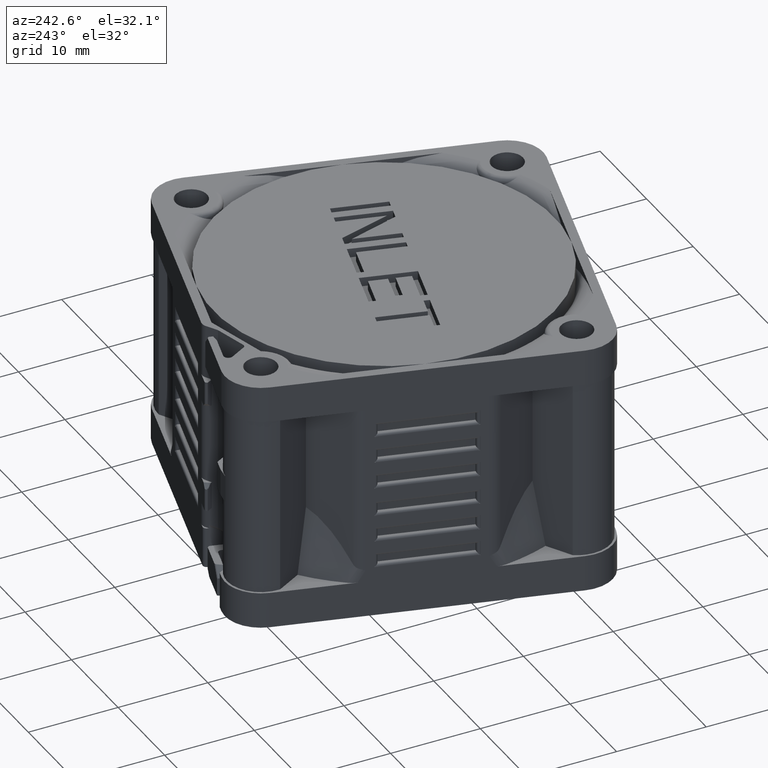
[diagram: clean part render]
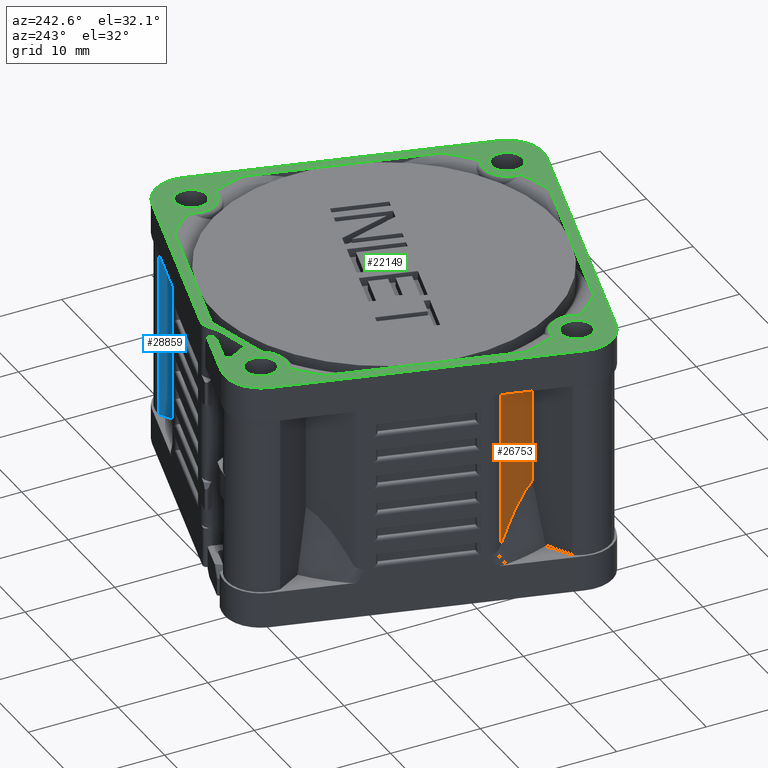
[diagram: same view with three faces highlighted in distinct colors, each labeled with its STEP entity id]
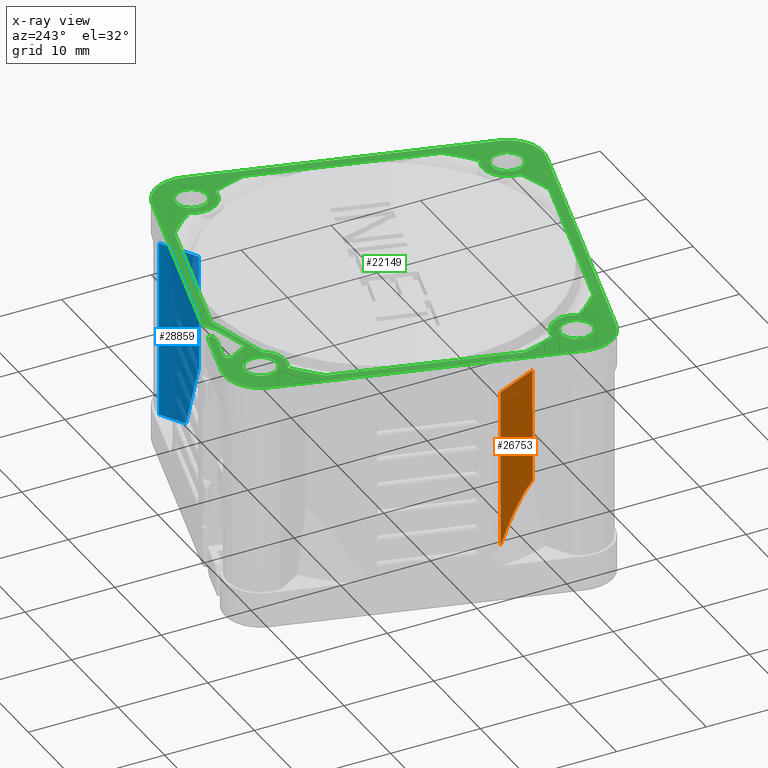
[diagram: x-ray of the same camera — body ghosted, the three highlighted faces saturated]
A machine part, auxiliary view with three faces highlighted in distinct colors.
The next image is the same camera in x-ray (body ghosted, the three faces saturated) — at least one of them is partly hidden behind the body in this view.
Their STEP definitions:

[orange] entity #26753 — the highlighted planar face has unit normal (0.9063, 0.4226, 0).
#146=DIRECTION('',(-4.226182617374E-1,9.063077870382E-1,0.E0));
#147=VECTOR('',#146,5.159290710028E0);
#148=CARTESIAN_POINT('',(-1.863398064401E1,-6.890090898729E0,2.4E1));
#149=LINE('',#148,#147);
#5679=DIRECTION('',(-7.307935993119E-7,-3.656734859091E-7,-9.999999999997E-1));
#5680=VECTOR('',#5679,1.789423994913E1);
#5681=CARTESIAN_POINT('',(-2.081439111568E1,-2.214185552638E0,2.4E1));
#5682=LINE('',#5681,#5680);
#5711=CARTESIAN_POINT('',(-1.863398064401E1,-6.890090898728E0,
1.111549243382E1));
#5712=CARTESIAN_POINT('',(-1.869593648646E1,-6.757226165834E0,
1.105888777689E1));
#5713=CARTESIAN_POINT('',(-1.882358867560E1,-6.483475164490E0,
1.092696558202E1));
#5714=CARTESIAN_POINT('',(-1.902354907844E1,-6.054658689103E0,
1.066923158123E1));
#5715=CARTESIAN_POINT('',(-1.923625593738E1,-5.598507386220E0,
1.033838555724E1));
#5716=CARTESIAN_POINT('',(-1.946256770216E1,-5.113180135533E0,
9.922620373976E0));
#5717=CARTESIAN_POINT('',(-1.970371719838E1,-4.596033763558E0,
9.408195123351E0));
#5718=CARTESIAN_POINT('',(-1.995939334928E1,-4.047733027265E0,
8.783510169619E0));
#5719=CARTESIAN_POINT('',(-2.022930818114E1,-3.468904255977E0,
8.037182415712E0));
#5720=CARTESIAN_POINT('',(-2.051327595190E1,-2.859913053331E0,
7.158252166514E0));
#5721=CARTESIAN_POINT('',(-2.071270042291E1,-2.432296534181E0,
6.473011944736E0));
#5722=CARTESIAN_POINT('',(-2.081440419267E1,-2.214192096087E0,
6.105760050872E0));
#5724=DIRECTION('',(0.E0,-7.210478337914E-14,1.E0));
#5725=VECTOR('',#5724,1.288450756618E1);
#5726=CARTESIAN_POINT('',(-1.863398064401E1,-6.890090898728E0,
1.111549243382E1));
#5727=LINE('',#5726,#5725);
#11691=CARTESIAN_POINT('',(-1.863398064401E1,-6.890090898729E0,2.4E1));
#11692=VERTEX_POINT('',#11691);
#11693=CARTESIAN_POINT('',(-2.081439111568E1,-2.214185552638E0,2.4E1));
#11694=VERTEX_POINT('',#11693);
#12612=CARTESIAN_POINT('',(-2.081440419267E1,-2.214192096087E0,
6.105760050872E0));
#12613=VERTEX_POINT('',#12612);
#12614=CARTESIAN_POINT('',(-1.863398064401E1,-6.890090898728E0,
1.111549243382E1));
#12615=VERTEX_POINT('',#12614);
#26740=CARTESIAN_POINT('',(-1.888385127123E1,-6.354241609414E0,2.4E1));
#26741=DIRECTION('',(9.063077870367E-1,4.226182617407E-1,0.E0));
#26742=DIRECTION('',(0.E0,0.E0,-1.E0));
#26743=AXIS2_PLACEMENT_3D('',#26740,#26741,#26742);
#26744=PLANE('',#26743);
#26745=ORIENTED_EDGE('',*,*,#26730,.F.);
#26746=ORIENTED_EDGE('',*,*,#14259,.F.);
#26748=ORIENTED_EDGE('',*,*,#26747,.F.);
#26750=ORIENTED_EDGE('',*,*,#26749,.T.);
#26751=EDGE_LOOP('',(#26745,#26746,#26748,#26750));
#26752=FACE_OUTER_BOUND('',#26751,.F.);
#26753=ADVANCED_FACE('',(#26752),#26744,.F.);
#5723=B_SPLINE_CURVE_WITH_KNOTS('',3,(#5711,#5712,#5713,#5714,#5715,#5716,#5717,
#5718,#5719,#5720,#5721,#5722),.UNSPECIFIED.,.F.,.F.,(4,1,1,1,1,1,1,1,1,4),
(0.E0,1.111111111111E-1,2.222222222222E-1,3.333333333333E-1,4.444444444444E-1,
5.555555555556E-1,6.666666666667E-1,7.777777777778E-1,8.888888888889E-1,1.E0),
.UNSPECIFIED.);
#14259=EDGE_CURVE('',#11692,#11694,#149,.T.);
#26730=EDGE_CURVE('',#11694,#12613,#5682,.T.);
#26747=EDGE_CURVE('',#12615,#11692,#5727,.T.);
#26749=EDGE_CURVE('',#12615,#12613,#5723,.T.);

[blue] entity #28859 — the highlighted planar face has unit normal (0.5, -0.866, 0).
#319=DIRECTION('',(8.660228321728E-1,5.000044541356E-1,0.E0));
#320=VECTOR('',#319,4.730358838087E0);
#321=CARTESIAN_POINT('',(1.528409417094E1,1.269229792821E1,2.4E1));
#322=LINE('',#321,#320);
#405=DIRECTION('',(-8.660204290515E-1,-5.000086163912E-1,1.999955604561E-13));
#406=VECTOR('',#405,3.197513288423E0);
#407=CARTESIAN_POINT('',(1.938069299405E1,1.505749845470E1,4.E0));
#408=LINE('',#407,#406);
#6907=DIRECTION('',(3.248003288547E-9,1.889466716420E-9,-1.E0));
#6908=VECTOR('',#6907,2.E1);
#6909=CARTESIAN_POINT('',(1.938069292909E1,1.505749841691E1,2.4E1));
#6910=LINE('',#6909,#6908);
#6915=DIRECTION('',(5.831835335231E-14,3.143400606224E-14,-1.E0));
#6916=VECTOR('',#6915,1.288443345660E1);
#6917=CARTESIAN_POINT('',(1.528409417094E1,1.269229792821E1,2.4E1));
#6918=LINE('',#6917,#6916);
#6965=CARTESIAN_POINT('',(1.661158116411E1,1.345871425946E1,4.000000000001E0));
#6966=CARTESIAN_POINT('',(1.646424218571E1,1.337364901976E1,4.790521258856E0));
#6967=CARTESIAN_POINT('',(1.616945563431E1,1.320345584394E1,6.371628059371E0));
#6968=CARTESIAN_POINT('',(1.572696928866E1,1.294798911364E1,8.743485976336E0));
#6969=CARTESIAN_POINT('',(1.543176291040E1,1.277755355340E1,1.032485347079E1));
#6970=CARTESIAN_POINT('',(1.528409417094E1,1.269229792821E1,1.111556654340E1));
#11975=CARTESIAN_POINT('',(1.528409417094E1,1.269229792821E1,2.4E1));
#11976=VERTEX_POINT('',#11975);
#11977=CARTESIAN_POINT('',(1.938069292909E1,1.505749841691E1,2.4E1));
#11978=VERTEX_POINT('',#11977);
#12105=CARTESIAN_POINT('',(1.938072471336E1,1.505752899070E1,4.E0));
#12106=VERTEX_POINT('',#12105);
#12107=CARTESIAN_POINT('',(1.661158116411E1,1.345871425946E1,4.000000000001E0));
#12108=VERTEX_POINT('',#12107);
#12651=CARTESIAN_POINT('',(1.528409417094E1,1.269229792821E1,1.111556654340E1));
#12652=VERTEX_POINT('',#12651);
#28845=CARTESIAN_POINT('',(-1.924251553549E1,-7.241424720734E0,2.4E1));
#28846=DIRECTION('',(4.999957717816E-1,-8.660278449337E-1,0.E0));
#28847=DIRECTION('',(0.E0,0.E0,-1.E0));
#28848=AXIS2_PLACEMENT_3D('',#28845,#28846,#28847);
#28849=PLANE('',#28848);
#28850=ORIENTED_EDGE('',*,*,#14658,.F.);
#28852=ORIENTED_EDGE('',*,*,#28851,.T.);
#28854=ORIENTED_EDGE('',*,*,#28853,.F.);
#28855=ORIENTED_EDGE('',*,*,#14840,.F.);
#28856=ORIENTED_EDGE('',*,*,#28836,.F.);
#28857=EDGE_LOOP('',(#28850,#28852,#28854,#28855,#28856));
#28858=FACE_OUTER_BOUND('',#28857,.F.);
#28859=ADVANCED_FACE('',(#28858),#28849,.F.);
#6971=B_SPLINE_CURVE_WITH_KNOTS('',3,(#6965,#6966,#6967,#6968,#6969,#6970),
.UNSPECIFIED.,.F.,.F.,(4,1,1,4),(0.E0,3.333333333333E-1,6.666666666667E-1,1.E0),
.UNSPECIFIED.);
#14658=EDGE_CURVE('',#11976,#11978,#322,.T.);
#14840=EDGE_CURVE('',#12106,#12108,#408,.T.);
#28836=EDGE_CURVE('',#11978,#12106,#6910,.T.);
#28851=EDGE_CURVE('',#11976,#12652,#6918,.T.);
#28853=EDGE_CURVE('',#12108,#12652,#6971,.T.);

[green] entity #22149 — the highlighted planar face has unit normal (0, 0, 1).
#3051=DIRECTION('',(5.000001344497E-1,-8.660253261599E-1,0.E0));
#3052=VECTOR('',#3051,2.046867263477E0);
#3053=CARTESIAN_POINT('',(-8.393399178571E0,2.124264370154E1,2.8E1));
#3054=LINE('',#3053,#3052);
#3055=CARTESIAN_POINT('',(-7.023183479253E0,1.966936049299E1,2.8E1));
#3056=DIRECTION('',(0.E0,0.E0,1.E0));
#3057=DIRECTION('',(-8.669432369872E-1,-4.984068858295E-1,0.E0));
#3058=AXIS2_PLACEMENT_3D('',#3055,#3056,#3057);
#3060=DIRECTION('',(9.659258262891E-1,2.588190451024E-1,0.E0));
#3061=VECTOR('',#3060,3.693069204783E0);
#3062=CARTESIAN_POINT('',(-6.919655861201E0,1.928299016248E1,2.8E1));
#3063=LINE('',#3062,#3061);
#3064=DIRECTION('',(8.660254037839E-1,5.000000000009E-1,0.E0));
#3065=VECTOR('',#3064,1.450378814779E0);
#3066=CARTESIAN_POINT('',(-3.352424938029E0,2.023882680755E1,2.8E1));
#3067=LINE('',#3066,#3065);
#3068=CARTESIAN_POINT('',(-1.596360039324E0,2.009799081116E1,2.8E1));
#3069=DIRECTION('',(0.E0,0.E0,-1.E0));
#3070=DIRECTION('',(-5.000000000046E-1,8.660254037818E-1,0.E0));
#3071=AXIS2_PLACEMENT_3D('',#3068,#3069,#3070);
#3073=DIRECTION('',(9.659258262890E-1,-2.588190451026E-1,0.E0));
#3074=VECTOR('',#3073,2.274370818029E1);
#3075=CARTESIAN_POINT('',(-1.337540994262E0,2.106391663746E1,2.8E1));
#3076=LINE('',#3075,#3074);
#3077=CARTESIAN_POINT('',(1.959591794227E1,1.131370849898E1,2.8E1));
#3078=DIRECTION('',(0.E0,0.E0,-1.E0));
#3079=DIRECTION('',(2.588190450939E-1,9.659258262914E-1,0.E0));
#3080=AXIS2_PLACEMENT_3D('',#3077,#3078,#3079);
#3082=DIRECTION('',(-2.588190451026E-1,-9.659258262890E-1,0.E0));
#3083=VECTOR('',#3082,3.200000000015E1);
#3084=CARTESIAN_POINT('',(2.345962124747E1,1.027843231875E1,2.8E1));
#3085=LINE('',#3084,#3083);
#3086=CARTESIAN_POINT('',(1.131370849898E1,-1.959591794227E1,2.8E1));
#3087=DIRECTION('',(0.E0,0.E0,-1.E0));
#3088=DIRECTION('',(9.659258262948E-1,-2.588190450812E-1,0.E0));
#3089=AXIS2_PLACEMENT_3D('',#3086,#3087,#3088);
#3091=DIRECTION('',(-9.659258262890E-1,2.588190451026E-1,0.E0));
#3092=VECTOR('',#3091,3.200000000015E1);
#3093=CARTESIAN_POINT('',(1.027843231875E1,-2.345962124747E1,2.8E1));
#3094=LINE('',#3093,#3092);
#3095=CARTESIAN_POINT('',(-1.959591794227E1,-1.131370849898E1,2.8E1));
#3096=DIRECTION('',(0.E0,0.E0,-1.E0));
#3097=DIRECTION('',(-2.588190450812E-1,-9.659258262948E-1,0.E0));
#3098=AXIS2_PLACEMENT_3D('',#3095,#3096,#3097);
#3100=DIRECTION('',(2.588190451026E-1,9.659258262890E-1,0.E0));
#3101=VECTOR('',#3100,3.200000000015E1);
#3102=CARTESIAN_POINT('',(-2.345962124747E1,-1.027843231875E1,2.8E1));
#3103=LINE('',#3102,#3101);
#3104=CARTESIAN_POINT('',(-1.131370849898E1,1.959591794227E1,2.8E1));
#3105=DIRECTION('',(0.E0,0.E0,-1.E0));
#3106=DIRECTION('',(-9.659258262948E-1,2.588190450812E-1,0.E0));
#3107=AXIS2_PLACEMENT_3D('',#3104,#3105,#3106);
#3109=DIRECTION('',(9.659258262890E-1,-2.588190451027E-1,-5.920087269458E-12));
#3110=VECTOR('',#3109,6.217157287910E0);
#3111=CARTESIAN_POINT('',(-1.027843231879E1,2.345962124748E1,2.799999999999E1));
#3112=LINE('',#3111,#3110);
#3113=DIRECTION('',(-2.588190450926E-1,-9.659258262917E-1,-1.123933434853E-12));
#3114=VECTOR('',#3113,3.982815259762E-1);
#3115=CARTESIAN_POINT('',(-4.051678256734E0,2.158411228895E1,2.8E1));
#3116=LINE('',#3115,#3114);
#3117=DIRECTION('',(-9.659258262888E-1,2.588190451035E-1,0.E0));
#3118=VECTOR('',#3117,2.999024811063E0);
#3119=CARTESIAN_POINT('',(-4.934141435553E0,2.119940187687E1,2.8E1));
#3120=LINE('',#3119,#3118);
#3121=CARTESIAN_POINT('',(-7.960386476680E0,2.149264370154E1,2.8E1));
#3122=DIRECTION('',(0.E0,0.E0,1.E0));
#3123=DIRECTION('',(2.588190448019E-1,9.659258263696E-1,0.E0));
#3124=AXIS2_PLACEMENT_3D('',#3121,#3122,#3123);
#3126=CARTESIAN_POINT('',(-7.960386476680E0,2.149264370154E1,2.8E1));
#3127=DIRECTION('',(0.E0,0.E0,1.E0));
#3128=DIRECTION('',(-1.E0,0.E0,0.E0));
#3129=AXIS2_PLACEMENT_3D('',#3126,#3127,#3128);
#3131=CARTESIAN_POINT('',(-1.131370849898E1,1.959591794227E1,2.8E1));
#3132=DIRECTION('',(0.E0,0.E0,1.E0));
#3133=DIRECTION('',(-2.588190451025E-1,-9.659258262891E-1,0.E0));
#3134=AXIS2_PLACEMENT_3D('',#3131,#3132,#3133);
#3136=CARTESIAN_POINT('',(-1.131370849898E1,1.959591794227E1,2.8E1));
#3137=DIRECTION('',(0.E0,0.E0,1.E0));
#3138=DIRECTION('',(2.588190451025E-1,9.659258262891E-1,0.E0));
#3139=AXIS2_PLACEMENT_3D('',#3136,#3137,#3138);
#3141=CARTESIAN_POINT('',(1.959591794227E1,1.131370849898E1,2.8E1));
#3142=DIRECTION('',(0.E0,0.E0,1.E0));
#3143=DIRECTION('',(-9.659258262891E-1,2.588190451025E-1,0.E0));
#3144=AXIS2_PLACEMENT_3D('',#3141,#3142,#3143);
#3146=CARTESIAN_POINT('',(1.959591794227E1,1.131370849898E1,2.8E1));
#3147=DIRECTION('',(0.E0,0.E0,1.E0));
#3148=DIRECTION('',(9.659258262891E-1,-2.588190451025E-1,0.E0));
#3149=AXIS2_PLACEMENT_3D('',#3146,#3147,#3148);
#3151=CARTESIAN_POINT('',(1.131370849898E1,-1.959591794227E1,2.8E1));
#3152=DIRECTION('',(0.E0,0.E0,1.E0));
#3153=DIRECTION('',(2.588190451025E-1,9.659258262891E-1,0.E0));
#3154=AXIS2_PLACEMENT_3D('',#3151,#3152,#3153);
#3156=CARTESIAN_POINT('',(1.131370849898E1,-1.959591794227E1,2.8E1));
#3157=DIRECTION('',(0.E0,0.E0,1.E0));
#3158=DIRECTION('',(-2.588190451025E-1,-9.659258262891E-1,0.E0));
#3159=AXIS2_PLACEMENT_3D('',#3156,#3157,#3158);
#3161=CARTESIAN_POINT('',(-1.959591794227E1,-1.131370849898E1,2.8E1));
#3162=DIRECTION('',(0.E0,0.E0,1.E0));
#3163=DIRECTION('',(9.659258262891E-1,-2.588190451025E-1,0.E0));
#3164=AXIS2_PLACEMENT_3D('',#3161,#3162,#3163);
#3166=CARTESIAN_POINT('',(-1.959591794227E1,-1.131370849898E1,2.8E1));
#3167=DIRECTION('',(0.E0,0.E0,1.E0));
#3168=DIRECTION('',(-9.659258262891E-1,2.588190451025E-1,0.E0));
#3169=AXIS2_PLACEMENT_3D('',#3166,#3167,#3168);
#3171=DIRECTION('',(-9.659258262891E-1,2.588190451024E-1,0.E0));
#3172=VECTOR('',#3171,1.699753950082E1);
#3173=CARTESIAN_POINT('',(1.463700299657E1,1.574827429525E1,2.8E1));
#3174=LINE('',#3173,#3172);
#3175=DIRECTION('',(-9.659258262891E-1,-2.588190451023E-1,0.E0));
#3176=VECTOR('',#3175,7.466583264655E0);
#3177=CARTESIAN_POINT('',(-1.781359390645E0,2.014756123794E1,2.8E1));
#3178=LINE('',#3177,#3176);
#3179=CARTESIAN_POINT('',(-1.131370849898E1,1.959591794227E1,2.8E1));
#3180=DIRECTION('',(0.E0,0.E0,-1.E0));
#3181=DIRECTION('',(8.593272218019E-1,-5.114261685426E-1,0.E0));
#3182=AXIS2_PLACEMENT_3D('',#3179,#3180,#3181);
#3184=CARTESIAN_POINT('',(0.E0,0.E0,2.8E1));
#3185=DIRECTION('',(0.E0,0.E0,1.E0));
#3186=DIRECTION('',(-5.930861004692E-1,8.051390422966E-1,0.E0));
#3187=AXIS2_PLACEMENT_3D('',#3184,#3185,#3186);
#3189=DIRECTION('',(-2.588190451026E-1,-9.659258262890E-1,0.E0));
#3190=VECTOR('',#3189,2.012461179749E1);
#3191=CARTESIAN_POINT('',(-1.574827429525E1,1.463700299657E1,2.8E1));
#3192=LINE('',#3191,#3190);
#3193=CARTESIAN_POINT('',(0.E0,0.E0,2.8E1));
#3194=DIRECTION('',(0.E0,0.E0,1.E0));
#3195=DIRECTION('',(-9.747398652901E-1,-2.233432224497E-1,0.E0));
#3196=AXIS2_PLACEMENT_3D('',#3193,#3194,#3195);
#3198=CARTESIAN_POINT('',(-1.959591794227E1,-1.131370849898E1,2.8E1));
#3199=DIRECTION('',(0.E0,0.E0,-1.E0));
#3200=DIRECTION('',(-3.789659245745E-2,9.992816661383E-1,0.E0));
#3201=AXIS2_PLACEMENT_3D('',#3198,#3199,#3200);
#3203=CARTESIAN_POINT('',(0.E0,0.E0,2.8E1));
#3204=DIRECTION('',(0.E0,0.E0,1.E0));
#3205=DIRECTION('',(-8.051390422966E-1,-5.930861004692E-1,0.E0));
#3206=AXIS2_PLACEMENT_3D('',#3203,#3204,#3205);
#3208=DIRECTION('',(9.659258262891E-1,-2.588190451025E-1,0.E0));
#3209=VECTOR('',#3208,2.012461179750E1);
#3210=CARTESIAN_POINT('',(-1.463700299657E1,-1.574827429525E1,2.8E1));
#3211=LINE('',#3210,#3209);
#3212=CARTESIAN_POINT('',(0.E0,0.E0,2.8E1));
#3213=DIRECTION('',(0.E0,0.E0,1.E0));
#3214=DIRECTION('',(2.233432224501E-1,-9.747398652900E-1,0.E0));
#3215=AXIS2_PLACEMENT_3D('',#3212,#3213,#3214);
#3217=CARTESIAN_POINT('',(1.131370849898E1,-1.959591794227E1,2.8E1));
#3218=DIRECTION('',(0.E0,0.E0,-1.E0));
#3219=DIRECTION('',(-9.992816661383E-1,-3.789659245746E-2,0.E0));
#3220=AXIS2_PLACEMENT_3D('',#3217,#3218,#3219);
#3222=CARTESIAN_POINT('',(0.E0,0.E0,2.8E1));
#3223=DIRECTION('',(0.E0,0.E0,1.E0));
#3224=DIRECTION('',(5.930861004692E-1,-8.051390422966E-1,0.E0));
#3225=AXIS2_PLACEMENT_3D('',#3222,#3223,#3224);
#3227=DIRECTION('',(2.588190451023E-1,9.659258262891E-1,0.E0));
#3228=VECTOR('',#3227,2.012461179751E1);
#3229=CARTESIAN_POINT('',(1.574827429525E1,-1.463700299657E1,2.8E1));
#3230=LINE('',#3229,#3228);
#3231=CARTESIAN_POINT('',(0.E0,0.E0,2.8E1));
#3232=DIRECTION('',(0.E0,0.E0,1.E0));
#3233=DIRECTION('',(9.747398652900E-1,2.233432224503E-1,0.E0));
#3234=AXIS2_PLACEMENT_3D('',#3231,#3232,#3233);
#3236=CARTESIAN_POINT('',(1.959591794227E1,1.131370849898E1,2.8E1));
#3237=DIRECTION('',(0.E0,0.E0,-1.E0));
#3238=DIRECTION('',(3.789659245745E-2,-9.992816661383E-1,0.E0));
#3239=AXIS2_PLACEMENT_3D('',#3236,#3237,#3238);
#3241=CARTESIAN_POINT('',(0.E0,0.E0,2.8E1));
#3242=DIRECTION('',(0.E0,0.E0,1.E0));
#3243=DIRECTION('',(8.051390422966E-1,5.930861004692E-1,0.E0));
#3244=AXIS2_PLACEMENT_3D('',#3241,#3242,#3243);
#3334=DIRECTION('',(1.E0,1.116803712742E-12,4.376047200949E-13));
#3335=VECTOR('',#3334,7.793803345880E-1);
#3336=CARTESIAN_POINT('',(-4.934141435553E0,2.119940187687E1,2.8E1));
#3337=LINE('',#3336,#3335);
#3350=CARTESIAN_POINT('',(-4.051678256737E0,2.158411228894E1,2.8E1));
#3351=CARTESIAN_POINT('',(-4.041264182576E0,2.162297814274E1,2.8E1));
#3352=CARTESIAN_POINT('',(-4.052851694337E0,2.168199466030E1,2.8E1));
#3353=CARTESIAN_POINT('',(-4.115004717389E0,2.177752373694E1,2.8E1));
#3354=CARTESIAN_POINT('',(-4.195387820589E0,2.182967438661E1,2.8E1));
#3355=CARTESIAN_POINT('',(-4.273119528197E0,2.185050253495E1,2.8E1));
#4082=CARTESIAN_POINT('',(1.275135116009E1,-1.731048940938E1,2.8E1));
#4113=CARTESIAN_POINT('',(8.615648000406E0,-1.969823874191E1,2.8E1));
#11581=CARTESIAN_POINT('',(-1.517741180415E1,2.063119412265E1,2.8E1));
#11582=VERTEX_POINT('',#11581);
#11583=CARTESIAN_POINT('',(-2.345962124747E1,-1.027843231875E1,2.8E1));
#11584=VERTEX_POINT('',#11583);
#11727=CARTESIAN_POINT('',(-2.063119412265E1,-1.517741180415E1,2.8E1));
#11728=VERTEX_POINT('',#11727);
#11729=CARTESIAN_POINT('',(1.027843231875E1,-2.345962124747E1,2.8E1));
#11730=VERTEX_POINT('',#11729);
#11849=CARTESIAN_POINT('',(1.517741180415E1,-2.063119412265E1,2.8E1));
#11850=VERTEX_POINT('',#11849);
#11869=CARTESIAN_POINT('',(2.345962124747E1,1.027843231875E1,2.8E1));
#11870=VERTEX_POINT('',#11869);
#11989=CARTESIAN_POINT('',(2.063119412266E1,1.517741180414E1,2.8E1));
#11990=VERTEX_POINT('',#11989);
#11996=CARTESIAN_POINT('',(-1.337540994262E0,2.106391663746E1,2.8E1));
#11997=VERTEX_POINT('',#11996);
#12331=VERTEX_POINT('',#4082);
#12334=VERTEX_POINT('',#4113);
#12335=CARTESIAN_POINT('',(4.801879282678E0,-2.095690710374E1,2.8E1));
#12336=VERTEX_POINT('',#12335);
#12338=CARTESIAN_POINT('',(1.574827429525E1,-1.463700299657E1,2.8E1));
#12339=VERTEX_POINT('',#12338);
#12342=CARTESIAN_POINT('',(-8.393399178571E0,2.124264370154E1,2.8E1));
#12343=CARTESIAN_POINT('',(-7.369965271631E0,1.947000481208E1,2.8E1));
#12344=VERTEX_POINT('',#12342);
#12345=VERTEX_POINT('',#12343);
#12346=CARTESIAN_POINT('',(-6.919655861180E0,1.928299016248E1,2.8E1));
#12347=VERTEX_POINT('',#12346);
#12348=CARTESIAN_POINT('',(-3.352424938029E0,2.023882680755E1,2.8E1));
#12349=VERTEX_POINT('',#12348);
#12350=CARTESIAN_POINT('',(-2.096360039320E0,2.096401621495E1,2.8E1));
#12351=VERTEX_POINT('',#12350);
#12352=CARTESIAN_POINT('',(-1.027843231887E1,2.345962124751E1,2.8E1));
#12353=VERTEX_POINT('',#12352);
#12354=CARTESIAN_POINT('',(-4.273119528294E0,2.185050253497E1,
2.799999999996E1));
#12355=VERTEX_POINT('',#12354);
#12356=VERTEX_POINT('',#3350);
#12357=CARTESIAN_POINT('',(-4.154761100965E0,2.119940187687E1,2.8E1));
#12358=VERTEX_POINT('',#12357);
#12359=CARTESIAN_POINT('',(-4.934141435553E0,2.119940187687E1,2.8E1));
#12360=VERTEX_POINT('',#12359);
#12361=CARTESIAN_POINT('',(-7.830976954240E0,2.197560661471E1,2.8E1));
#12362=VERTEX_POINT('',#12361);
#12363=CARTESIAN_POINT('',(-8.460386476680E0,2.149264370154E1,2.8E1));
#12364=VERTEX_POINT('',#12363);
#12365=CARTESIAN_POINT('',(-1.176664182791E1,1.790554774626E1,2.8E1));
#12366=CARTESIAN_POINT('',(-1.086077517005E1,2.128628813828E1,2.8E1));
#12367=VERTEX_POINT('',#12365);
#12368=VERTEX_POINT('',#12366);
#12369=CARTESIAN_POINT('',(1.790554774626E1,1.176664182791E1,2.8E1));
#12370=CARTESIAN_POINT('',(2.128628813828E1,1.086077517005E1,2.8E1));
#12371=VERTEX_POINT('',#12369);
#12372=VERTEX_POINT('',#12370);
#12373=CARTESIAN_POINT('',(1.176664182791E1,-1.790554774626E1,2.8E1));
#12374=CARTESIAN_POINT('',(1.086077517005E1,-2.128628813828E1,2.8E1));
#12375=VERTEX_POINT('',#12373);
#12376=VERTEX_POINT('',#12374);
#12377=CARTESIAN_POINT('',(-1.790554774626E1,-1.176664182791E1,2.8E1));
#12378=CARTESIAN_POINT('',(-2.128628813828E1,-1.086077517005E1,2.8E1));
#12379=VERTEX_POINT('',#12377);
#12380=VERTEX_POINT('',#12378);
#12381=CARTESIAN_POINT('',(1.463700299657E1,1.574827429525E1,2.8E1));
#12382=CARTESIAN_POINT('',(-1.781359390645E0,2.014756123794E1,2.8E1));
#12383=VERTEX_POINT('',#12381);
#12384=VERTEX_POINT('',#12382);
#12385=CARTESIAN_POINT('',(-8.993525000113E0,1.821506728721E1,2.8E1));
#12386=VERTEX_POINT('',#12385);
#12387=CARTESIAN_POINT('',(-1.275135116009E1,1.731048940938E1,2.8E1));
#12388=VERTEX_POINT('',#12387);
#12389=CARTESIAN_POINT('',(-1.574827429525E1,1.463700299657E1,2.8E1));
#12390=VERTEX_POINT('',#12389);
#12391=CARTESIAN_POINT('',(-2.095690710374E1,-4.801879282666E0,2.8E1));
#12392=VERTEX_POINT('',#12391);
#12393=CARTESIAN_POINT('',(-1.969823874191E1,-8.615648000407E0,2.8E1));
#12394=VERTEX_POINT('',#12393);
#12395=CARTESIAN_POINT('',(-1.731048940938E1,-1.275135116009E1,2.8E1));
#12396=VERTEX_POINT('',#12395);
#12397=CARTESIAN_POINT('',(-1.463700299657E1,-1.574827429525E1,2.8E1));
#12398=VERTEX_POINT('',#12397);
#12399=CARTESIAN_POINT('',(2.095690710373E1,4.801879282687E0,2.8E1));
#12400=VERTEX_POINT('',#12399);
#12401=CARTESIAN_POINT('',(1.969823874191E1,8.615648000407E0,2.8E1));
#12402=VERTEX_POINT('',#12401);
#12403=CARTESIAN_POINT('',(1.731048940938E1,1.275135116009E1,2.8E1));
#12404=VERTEX_POINT('',#12403);
#22052=CARTESIAN_POINT('',(0.E0,0.E0,2.8E1));
#22053=DIRECTION('',(0.E0,0.E0,1.E0));
#22054=DIRECTION('',(1.E0,0.E0,0.E0));
#22055=AXIS2_PLACEMENT_3D('',#22052,#22053,#22054);
#22056=PLANE('',#22055);
#22058=ORIENTED_EDGE('',*,*,#22057,.T.);
#22060=ORIENTED_EDGE('',*,*,#22059,.T.);
#22061=ORIENTED_EDGE('',*,*,#22045,.T.);
#22062=ORIENTED_EDGE('',*,*,#22004,.T.);
#22064=ORIENTED_EDGE('',*,*,#22063,.T.);
#22065=ORIENTED_EDGE('',*,*,#14702,.T.);
#22066=ORIENTED_EDGE('',*,*,#14684,.T.);
#22067=ORIENTED_EDGE('',*,*,#14527,.T.);
#22068=ORIENTED_EDGE('',*,*,#14495,.T.);
#22069=ORIENTED_EDGE('',*,*,#14338,.T.);
#22071=ORIENTED_EDGE('',*,*,#22070,.T.);
#22072=ORIENTED_EDGE('',*,*,#14129,.T.);
#22074=ORIENTED_EDGE('',*,*,#22073,.T.);
#22076=ORIENTED_EDGE('',*,*,#22075,.T.);
#22078=ORIENTED_EDGE('',*,*,#22077,.F.);
#22080=ORIENTED_EDGE('',*,*,#22079,.T.);
#22082=ORIENTED_EDGE('',*,*,#22081,.F.);
#22084=ORIENTED_EDGE('',*,*,#22083,.T.);
#22086=ORIENTED_EDGE('',*,*,#22085,.T.);
#22088=ORIENTED_EDGE('',*,*,#22087,.T.);
#22089=EDGE_LOOP('',(#22058,#22060,#22061,#22062,#22064,#22065,#22066,#22067,
#22068,#22069,#22071,#22072,#22074,#22076,#22078,#22080,#22082,#22084,#22086,
#22088));
#22090=FACE_OUTER_BOUND('',#22089,.F.);
#22092=ORIENTED_EDGE('',*,*,#22091,.T.);
#22094=ORIENTED_EDGE('',*,*,#22093,.T.);
#22095=EDGE_LOOP('',(#22092,#22094));
#22096=FACE_BOUND('',#22095,.F.);
#22098=ORIENTED_EDGE('',*,*,#22097,.T.);
#22100=ORIENTED_EDGE('',*,*,#22099,.T.);
#22101=EDGE_LOOP('',(#22098,#22100));
#22102=FACE_BOUND('',#22101,.F.);
#22104=ORIENTED_EDGE('',*,*,#22103,.T.);
#22106=ORIENTED_EDGE('',*,*,#22105,.T.);
#22107=EDGE_LOOP('',(#22104,#22106));
#22108=FACE_BOUND('',#22107,.F.);
#22110=ORIENTED_EDGE('',*,*,#22109,.T.);
#22112=ORIENTED_EDGE('',*,*,#22111,.T.);
#22113=EDGE_LOOP('',(#22110,#22112));
#22114=FACE_BOUND('',#22113,.F.);
#22116=ORIENTED_EDGE('',*,*,#22115,.T.);
#22118=ORIENTED_EDGE('',*,*,#22117,.T.);
#22120=ORIENTED_EDGE('',*,*,#22119,.T.);
#22122=ORIENTED_EDGE('',*,*,#22121,.T.);
#22124=ORIENTED_EDGE('',*,*,#22123,.T.);
#22126=ORIENTED_EDGE('',*,*,#22125,.T.);
#22128=ORIENTED_EDGE('',*,*,#22127,.T.);
#22130=ORIENTED_EDGE('',*,*,#22129,.T.);
#22132=ORIENTED_EDGE('',*,*,#22131,.T.);
#22134=ORIENTED_EDGE('',*,*,#22133,.T.);
#22136=ORIENTED_EDGE('',*,*,#22135,.T.);
#22138=ORIENTED_EDGE('',*,*,#22137,.T.);
#22140=ORIENTED_EDGE('',*,*,#22139,.T.);
#22142=ORIENTED_EDGE('',*,*,#22141,.T.);
#22144=ORIENTED_EDGE('',*,*,#22143,.T.);
#22146=ORIENTED_EDGE('',*,*,#22145,.T.);
#22147=EDGE_LOOP('',(#22116,#22118,#22120,#22122,#22124,#22126,#22128,#22130,
#22132,#22134,#22136,#22138,#22140,#22142,#22144,#22146));
#22148=FACE_BOUND('',#22147,.F.);
#22149=ADVANCED_FACE('',(#22090,#22096,#22102,#22108,#22114,#22148),#22056,.T.);
#3059=CIRCLE('',#3058,4.E-1);
#3072=CIRCLE('',#3071,1.E0);
#3081=CIRCLE('',#3080,4.E0);
#3090=CIRCLE('',#3089,4.E0);
#3099=CIRCLE('',#3098,4.E0);
#3108=CIRCLE('',#3107,4.E0);
#3125=CIRCLE('',#3124,5.E-1);
#3130=CIRCLE('',#3129,5.E-1);
#3135=CIRCLE('',#3134,1.75E0);
#3140=CIRCLE('',#3139,1.75E0);
#3145=CIRCLE('',#3144,1.75E0);
#3150=CIRCLE('',#3149,1.75E0);
#3155=CIRCLE('',#3154,1.75E0);
#3160=CIRCLE('',#3159,1.75E0);
#3165=CIRCLE('',#3164,1.75E0);
#3170=CIRCLE('',#3169,1.75E0);
#3183=CIRCLE('',#3182,2.7E0);
#3188=CIRCLE('',#3187,2.15E1);
#3197=CIRCLE('',#3196,2.15E1);
#3202=CIRCLE('',#3201,2.7E0);
#3207=CIRCLE('',#3206,2.15E1);
#3216=CIRCLE('',#3215,2.15E1);
#3221=CIRCLE('',#3220,2.7E0);
#3226=CIRCLE('',#3225,2.15E1);
#3235=CIRCLE('',#3234,2.15E1);
#3240=CIRCLE('',#3239,2.7E0);
#3245=CIRCLE('',#3244,2.15E1);
#3356=B_SPLINE_CURVE_WITH_KNOTS('',3,(#3350,#3351,#3352,#3353,#3354,#3355),
.UNSPECIFIED.,.F.,.F.,(4,1,1,4),(0.E0,2.5E-1,5.E-1,1.E0),.UNSPECIFIED.);
#14129=EDGE_CURVE('',#11584,#11582,#3103,.T.);
#14338=EDGE_CURVE('',#11730,#11728,#3094,.T.);
#14495=EDGE_CURVE('',#11850,#11730,#3090,.T.);
#14527=EDGE_CURVE('',#11870,#11850,#3085,.T.);
#14684=EDGE_CURVE('',#11990,#11870,#3081,.T.);
#14702=EDGE_CURVE('',#11997,#11990,#3076,.T.);
#22004=EDGE_CURVE('',#12349,#12351,#3067,.T.);
#22045=EDGE_CURVE('',#12347,#12349,#3063,.T.);
#22057=EDGE_CURVE('',#12344,#12345,#3054,.T.);
#22059=EDGE_CURVE('',#12345,#12347,#3059,.T.);
#22063=EDGE_CURVE('',#12351,#11997,#3072,.T.);
#22070=EDGE_CURVE('',#11728,#11584,#3099,.T.);
#22073=EDGE_CURVE('',#11582,#12353,#3108,.T.);
#22075=EDGE_CURVE('',#12353,#12355,#3112,.T.);
#22077=EDGE_CURVE('',#12356,#12355,#3356,.T.);
#22079=EDGE_CURVE('',#12356,#12358,#3116,.T.);
#22081=EDGE_CURVE('',#12360,#12358,#3337,.T.);
#22083=EDGE_CURVE('',#12360,#12362,#3120,.T.);
#22085=EDGE_CURVE('',#12362,#12364,#3125,.T.);
#22087=EDGE_CURVE('',#12364,#12344,#3130,.T.);
#22091=EDGE_CURVE('',#12367,#12368,#3135,.T.);
#22093=EDGE_CURVE('',#12368,#12367,#3140,.T.);
#22097=EDGE_CURVE('',#12371,#12372,#3145,.T.);
#22099=EDGE_CURVE('',#12372,#12371,#3150,.T.);
#22103=EDGE_CURVE('',#12375,#12376,#3155,.T.);
#22105=EDGE_CURVE('',#12376,#12375,#3160,.T.);
#22109=EDGE_CURVE('',#12379,#12380,#3165,.T.);
#22111=EDGE_CURVE('',#12380,#12379,#3170,.T.);
#22115=EDGE_CURVE('',#12383,#12384,#3174,.T.);
#22117=EDGE_CURVE('',#12384,#12386,#3178,.T.);
#22119=EDGE_CURVE('',#12386,#12388,#3183,.T.);
#22121=EDGE_CURVE('',#12388,#12390,#3188,.T.);
#22123=EDGE_CURVE('',#12390,#12392,#3192,.T.);
#22125=EDGE_CURVE('',#12392,#12394,#3197,.T.);
#22127=EDGE_CURVE('',#12394,#12396,#3202,.T.);
#22129=EDGE_CURVE('',#12396,#12398,#3207,.T.);
#22131=EDGE_CURVE('',#12398,#12336,#3211,.T.);
#22133=EDGE_CURVE('',#12336,#12334,#3216,.T.);
#22135=EDGE_CURVE('',#12334,#12331,#3221,.T.);
#22137=EDGE_CURVE('',#12331,#12339,#3226,.T.);
#22139=EDGE_CURVE('',#12339,#12400,#3230,.T.);
#22141=EDGE_CURVE('',#12400,#12402,#3235,.T.);
#22143=EDGE_CURVE('',#12402,#12404,#3240,.T.);
#22145=EDGE_CURVE('',#12404,#12383,#3245,.T.);